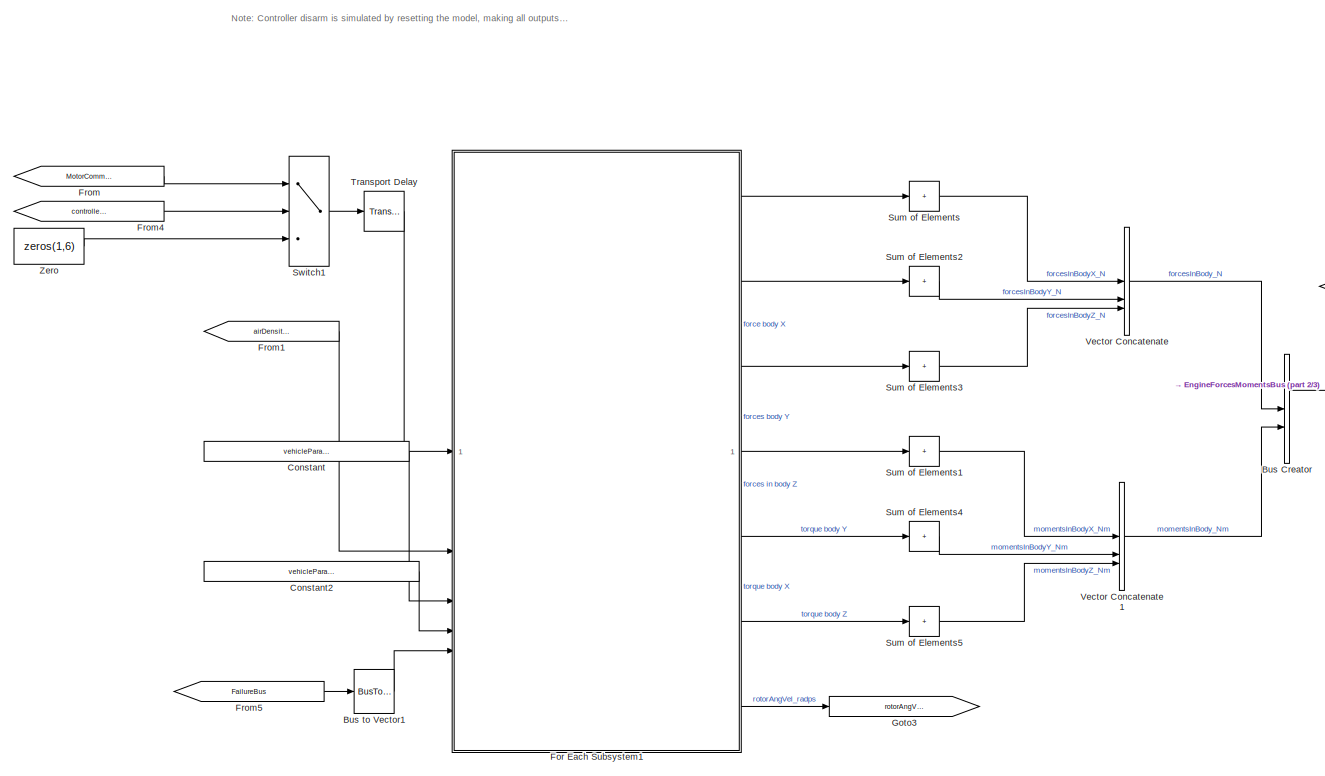
[diagram: root canvas - part 1/3, center side, full height]
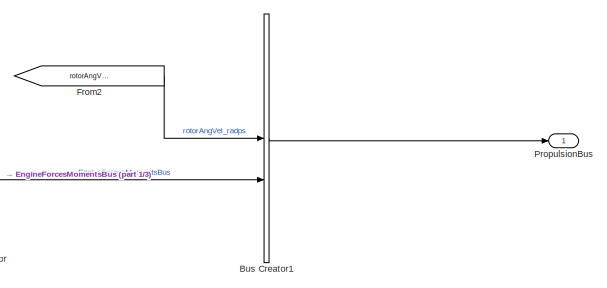
[diagram: root canvas - part 2/3, middle right region]
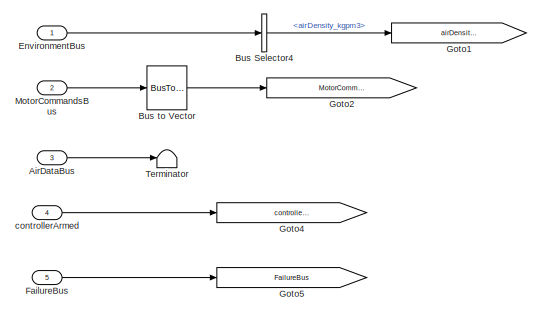
[diagram: root canvas - part 3/3, bottom left region]
MODEL slx_1cdb5f7f5667
KIND model
BLOCK [Inport] AirDataBus
  OutDataTypeStr = Bus: AirDataBus
  Port = 3
  SampleTime = stepSize_s
BLOCK [BusCreator] Bus Creator
  DisplayOption = bar
  InheritFromInputs = off
  Inputs = 2
  OutDataTypeStr = Bus: ComponentForcesMomentsBus
BLOCK [BusCreator] Bus Creator1
  DisplayOption = bar
  InheritFromInputs = on
  Inputs = 2
  NonVirtualBus = on
  OutDataTypeStr = Bus: PropulsionBus
BLOCK [BusSelector] Bus Selector4
  OutputSignals = AirEnvironment.airDensity_kgpm3
BLOCK [BusToVector] Bus to Vector
BLOCK [BusToVector] Bus to Vector1
BLOCK [Constant] Constant
  Value = vehicleParams.rotor.motorLocs
BLOCK [Constant] Constant2
  Value = vehicleParams.rotor.spinDirectionCW_isTrue
BLOCK [Inport] EnvironmentBus
  OutDataTypeStr = Bus: EnvironmentBus
BLOCK [Inport] FailureBus
  OutDataTypeStr = Bus: FailureBus
  Port = 5
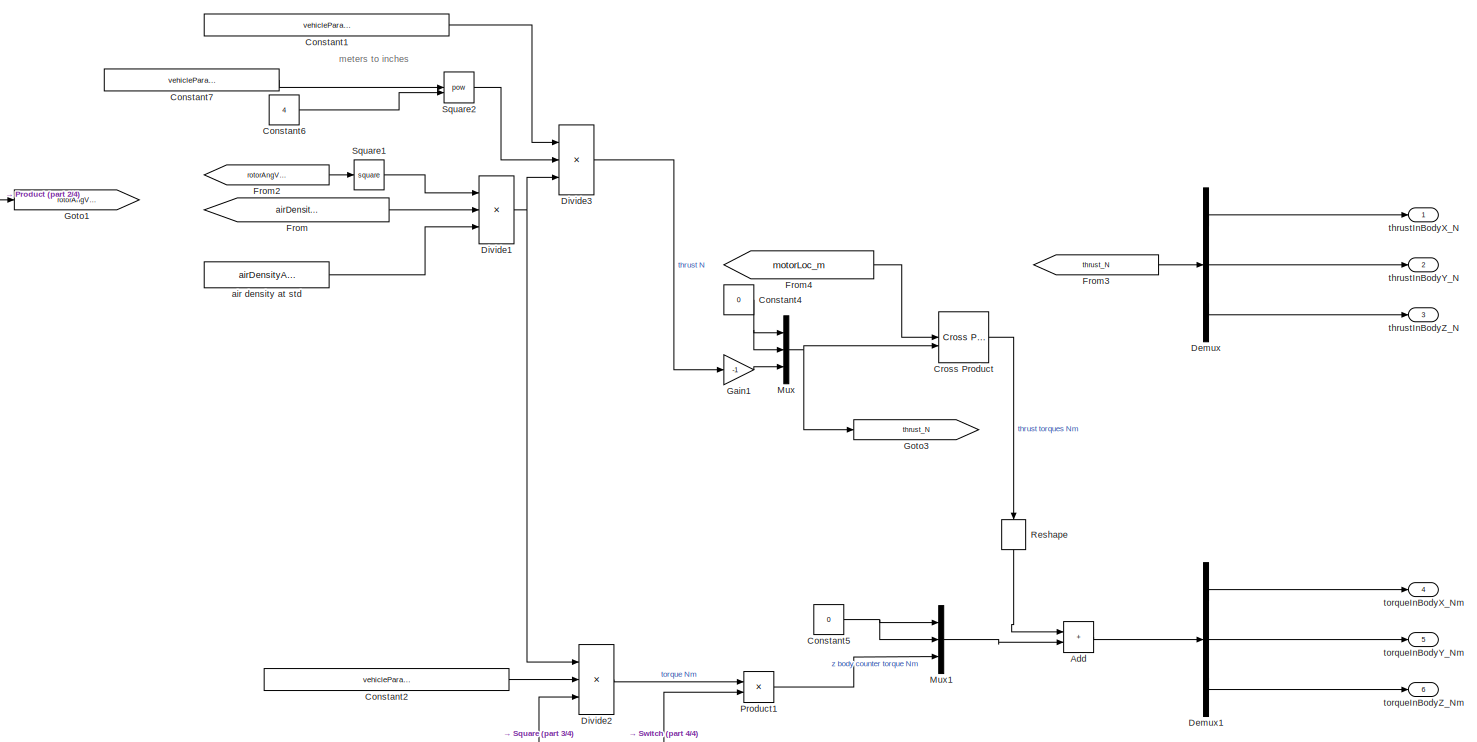
[diagram: For Each Subsystem1 - part 1/4, right side, full height]
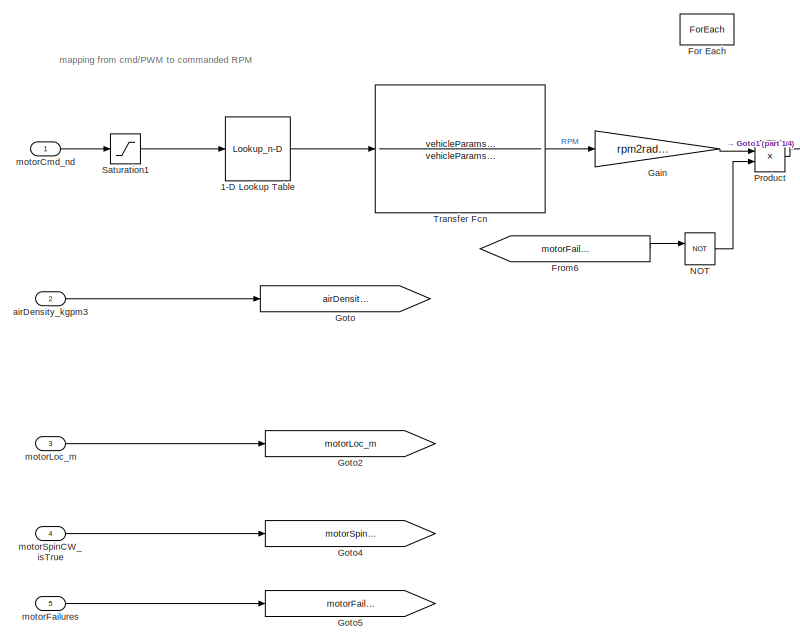
[diagram: For Each Subsystem1 - part 2/4, middle left region]
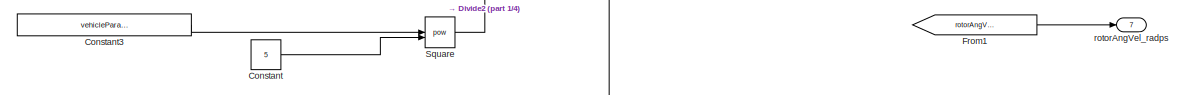
[diagram: For Each Subsystem1 - part 3/4, bottom center region]
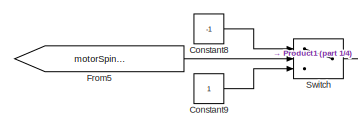
[diagram: For Each Subsystem1 - part 4/4, bottom center region]
BLOCK [SubSystem] For Each Subsystem1
  TreatAsAtomicUnit = on
BLOCK [Lookup_n-D] For Each Subsystem1/1-D Lookup Table
  BreakpointsForDimension1 = vehicleParams.rotor.cmdToRpmBkpts_nd
  InputPortMap = u0
  InternalRulePriority = Speed
  NumberOfTableDimensions = 1
  RndMeth = Simplest
  Table = vehicleParams.rotor.cmdToRpmData
BLOCK [Sum] For Each Subsystem1/Add
  IconShape = rectangular
BLOCK [Constant] For Each Subsystem1/Constant
  Value = 5
BLOCK [Constant] For Each Subsystem1/Constant1
  Value = vehicleParams.rotor.kct_nd
BLOCK [Constant] For Each Subsystem1/Constant2
  Value = vehicleParams.rotor.kcp_nd
BLOCK [Constant] For Each Subsystem1/Constant3
  Value = vehicleParams.rotor.diameter_m
BLOCK [Constant] For Each Subsystem1/Constant4
  Value = 0
BLOCK [Constant] For Each Subsystem1/Constant5
  Value = 0
BLOCK [Constant] For Each Subsystem1/Constant6
  Value = 4
BLOCK [Constant] For Each Subsystem1/Constant7
  Value = vehicleParams.rotor.diameter_m
BLOCK [Constant] For Each Subsystem1/Constant8
  Value = -1
BLOCK [Constant] For Each Subsystem1/Constant9
BLOCK [Reference] For Each Subsystem1/Cross Product  REF=matrix_library/Cross Product
  LibrarySourceBlock = simulink/Matrix\nOperations/Cross Product
  SourceBlock = matrix_library/Cross Product
  SourceType = CrossProduct
BLOCK [Demux] For Each Subsystem1/Demux
  Outputs = 3
BLOCK [Demux] For Each Subsystem1/Demux1
  Outputs = 3
BLOCK [Product] For Each Subsystem1/Divide1
  Inputs = **/
BLOCK [Product] For Each Subsystem1/Divide2
  Inputs = ***
BLOCK [Product] For Each Subsystem1/Divide3
  Inputs = ***
BLOCK [ForEach] For Each Subsystem1/For Each
  DisableCoverage = on
BLOCK [From] For Each Subsystem1/From
  GotoTag = airDensity_kgpm3
BLOCK [From] For Each Subsystem1/From1
  GotoTag = rotorAngVel_radps
BLOCK [From] For Each Subsystem1/From2
  GotoTag = rotorAngVel_radps
BLOCK [From] For Each Subsystem1/From3
  GotoTag = thrust_N
BLOCK [From] For Each Subsystem1/From4
  GotoTag = motorLoc_m
BLOCK [From] For Each Subsystem1/From5
  GotoTag = motorSpinCW_isTrue
BLOCK [From] For Each Subsystem1/From6
  GotoTag = motorFailures
BLOCK [Gain] For Each Subsystem1/Gain
  Gain = rpm2radps
BLOCK [Gain] For Each Subsystem1/Gain1
  Gain = -1
BLOCK [Goto] For Each Subsystem1/Goto
  GotoTag = airDensity_kgpm3
BLOCK [Goto] For Each Subsystem1/Goto1
  GotoTag = rotorAngVel_radps
BLOCK [Goto] For Each Subsystem1/Goto2
  GotoTag = motorLoc_m
BLOCK [Goto] For Each Subsystem1/Goto3
  GotoTag = thrust_N
BLOCK [Goto] For Each Subsystem1/Goto4
  GotoTag = motorSpinCW_isTrue
BLOCK [Goto] For Each Subsystem1/Goto5
  GotoTag = motorFailures
BLOCK [Mux] For Each Subsystem1/Mux
  DisplayOption = bar
  Inputs = 3
BLOCK [Mux] For Each Subsystem1/Mux1
  DisplayOption = bar
  Inputs = 3
BLOCK [Logic] For Each Subsystem1/NOT
  AllPortsSameDT = off
  IconShape = distinctive
  Operator = NOT
  OutDataTypeStr = boolean
BLOCK [Product] For Each Subsystem1/Product
BLOCK [Product] For Each Subsystem1/Product1
BLOCK [Reshape] For Each Subsystem1/Reshape
  NameLocation = left
BLOCK [Saturate] For Each Subsystem1/Saturation1
  LowerLimit = 0
  UpperLimit = 1
BLOCK [Math] For Each Subsystem1/Square
  Operator = pow
BLOCK [Math] For Each Subsystem1/Square1
  Operator = square
BLOCK [Math] For Each Subsystem1/Square2
  Operator = pow
BLOCK [Switch] For Each Subsystem1/Switch
  Criteria = u2 > Threshold
  InputSameDT = off
  SaturateOnIntegerOverflow = off
BLOCK [TransferFcn] For Each Subsystem1/Transfer Fcn
  Denominator = vehicleParams.actuator.tfDenominator
  Numerator = vehicleParams.actuator.tfNumerator
BLOCK [Constant] For Each Subsystem1/air density at std
  Value = airDensityAtStd_kgpm3
BLOCK [Inport] For Each Subsystem1/airDensity_kgpm3
  Port = 2
BLOCK [Inport] For Each Subsystem1/motorCmd_nd
  Partition = on
  PartitionDimension = 1
  PartitionOffset = 0
  PartitionWidth = 1
BLOCK [Inport] For Each Subsystem1/motorFailures
  Partition = on
  PartitionDimension = 1
  PartitionOffset = 0
  PartitionWidth = 1
  Port = 5
BLOCK [Inport] For Each Subsystem1/motorLoc_m
  Partition = on
  PartitionDimension = 1
  PartitionOffset = 0
  PartitionWidth = 1
  Port = 3
BLOCK [Inport] For Each Subsystem1/motorSpinCW_isTrue
  Partition = on
  PartitionDimension = 1
  PartitionOffset = 0
  PartitionWidth = 1
  Port = 4
BLOCK [Outport] For Each Subsystem1/rotorAngVel_radps
  ConcatenationDimension = 1
  Port = 7
BLOCK [Outport] For Each Subsystem1/thrustInBodyX_N
  ConcatenationDimension = 1
BLOCK [Outport] For Each Subsystem1/thrustInBodyY_N
  ConcatenationDimension = 1
  Port = 2
BLOCK [Outport] For Each Subsystem1/thrustInBodyZ_N
  ConcatenationDimension = 1
  Port = 3
BLOCK [Outport] For Each Subsystem1/torqueInBodyX_Nm
  ConcatenationDimension = 1
  Port = 4
BLOCK [Outport] For Each Subsystem1/torqueInBodyY_Nm
  ConcatenationDimension = 1
  Port = 5
BLOCK [Outport] For Each Subsystem1/torqueInBodyZ_Nm
  ConcatenationDimension = 1
  Port = 6
BLOCK [From] From
  GotoTag = MotorCommandsBus
BLOCK [From] From1
  GotoTag = airDensity_kgpm3
BLOCK [From] From2
  GotoTag = rotorAngVel_radps
BLOCK [From] From4
  GotoTag = controllerArmed
BLOCK [From] From5
  GotoTag = FailureBus
BLOCK [Goto] Goto1
  GotoTag = airDensity_kgpm3
BLOCK [Goto] Goto2
  GotoTag = MotorCommandsBus
BLOCK [Goto] Goto3
  GotoTag = rotorAngVel_radps
BLOCK [Goto] Goto4
  GotoTag = controllerArmed
BLOCK [Goto] Goto5
  GotoTag = FailureBus
BLOCK [Inport] MotorCommandsBus
  OutDataTypeStr = Bus: MotorCommandHexBus
  Port = 2
BLOCK [Outport] PropulsionBus
  BusOutputAsStruct = on
  OutDataTypeStr = Bus: PropulsionBus
BLOCK [Sum] Sum of Elements
  IconShape = rectangular
  Inputs = +
BLOCK [Sum] Sum of Elements1
  IconShape = rectangular
  Inputs = +
BLOCK [Sum] Sum of Elements2
  IconShape = rectangular
  Inputs = +
BLOCK [Sum] Sum of Elements3
  IconShape = rectangular
  Inputs = +
BLOCK [Sum] Sum of Elements4
  IconShape = rectangular
  Inputs = +
BLOCK [Sum] Sum of Elements5
  IconShape = rectangular
  Inputs = +
BLOCK [Switch] Switch1
  Criteria = u2 > Threshold
  InputSameDT = off
  SaturateOnIntegerOverflow = off
BLOCK [Terminator] Terminator
BLOCK [TransportDelay] Transport Delay
  DelayTime = actuatorDelay_s
BLOCK [Concatenate] Vector Concatenate
  NumInputs = 3
BLOCK [Concatenate] Vector Concatenate1
  NumInputs = 3
BLOCK [Constant] Zero
  OutDataTypeStr = Inherit: Inherit via back propagation
  Value = zeros(1,6)
BLOCK [Inport] controllerArmed
  Port = 4
ANNOTATION (root): Note: Controller disarm is simulated by resetting the model, making all outputs zero. This is not realistic, inertial forces should keep the rotor spinning until it slowly stops.
ANNOTATION For Each Subsystem1: mapping from cmd/PWM to commanded RPM
ANNOTATION For Each Subsystem1: meters to inches
LINE AirDataBus:1 -> Terminator:1
LINE Bus Creator1:1 -> PropulsionBus:1
LINE Bus Creator:1 -> Bus Creator1:2
LINE Bus Selector4:1 -> Goto1:1
LINE Bus to Vector1:1 -> For Each Subsystem1:5
LINE Bus to Vector:1 -> Goto2:1
LINE Constant2:1 -> For Each Subsystem1:4
LINE Constant:1 -> For Each Subsystem1:3
LINE EnvironmentBus:1 -> Bus Selector4:1
LINE FailureBus:1 -> Goto5:1
LINE For Each Subsystem1/1-D Lookup Table:1 -> For Each Subsystem1/Transfer Fcn:1
LINE For Each Subsystem1/Add:1 -> For Each Subsystem1/Demux1:1
LINE For Each Subsystem1/Constant1:1 -> For Each Subsystem1/Divide3:1
LINE For Each Subsystem1/Constant2:1 -> For Each Subsystem1/Divide2:2
LINE For Each Subsystem1/Constant3:1 -> For Each Subsystem1/Square:1
NET For Each Subsystem1/Constant4:1 -> For Each Subsystem1/Mux:1, For Each Subsystem1/Mux:2
NET For Each Subsystem1/Constant5:1 -> For Each Subsystem1/Mux1:1, For Each Subsystem1/Mux1:2
LINE For Each Subsystem1/Constant6:1 -> For Each Subsystem1/Square2:2
LINE For Each Subsystem1/Constant7:1 -> For Each Subsystem1/Square2:1
LINE For Each Subsystem1/Constant8:1 -> For Each Subsystem1/Switch:1
LINE For Each Subsystem1/Constant9:1 -> For Each Subsystem1/Switch:3
LINE For Each Subsystem1/Constant:1 -> For Each Subsystem1/Square:2
LINE For Each Subsystem1/Cross Product:1 -> For Each Subsystem1/Reshape:1
LINE For Each Subsystem1/Demux1:1 -> For Each Subsystem1/torqueInBodyX_Nm:1
LINE For Each Subsystem1/Demux1:2 -> For Each Subsystem1/torqueInBodyY_Nm:1
LINE For Each Subsystem1/Demux1:3 -> For Each Subsystem1/torqueInBodyZ_Nm:1
LINE For Each Subsystem1/Demux:1 -> For Each Subsystem1/thrustInBodyX_N:1
LINE For Each Subsystem1/Demux:2 -> For Each Subsystem1/thrustInBodyY_N:1
LINE For Each Subsystem1/Demux:3 -> For Each Subsystem1/thrustInBodyZ_N:1
NET For Each Subsystem1/Divide1:1 -> For Each Subsystem1/Divide2:1, For Each Subsystem1/Divide3:3
LINE For Each Subsystem1/Divide2:1 -> For Each Subsystem1/Product1:1
LINE For Each Subsystem1/Divide3:1 -> For Each Subsystem1/Gain1:1
LINE For Each Subsystem1/From1:1 -> For Each Subsystem1/rotorAngVel_radps:1
LINE For Each Subsystem1/From2:1 -> For Each Subsystem1/Square1:1
LINE For Each Subsystem1/From3:1 -> For Each Subsystem1/Demux:1
LINE For Each Subsystem1/From4:1 -> For Each Subsystem1/Cross Product:1
LINE For Each Subsystem1/From5:1 -> For Each Subsystem1/Switch:2
LINE For Each Subsystem1/From6:1 -> For Each Subsystem1/NOT:1
LINE For Each Subsystem1/From:1 -> For Each Subsystem1/Divide1:2
LINE For Each Subsystem1/Gain1:1 -> For Each Subsystem1/Mux:3
LINE For Each Subsystem1/Gain:1 -> For Each Subsystem1/Product:1
LINE For Each Subsystem1/Mux1:1 -> For Each Subsystem1/Add:2
NET For Each Subsystem1/Mux:1 -> For Each Subsystem1/Cross Product:2, For Each Subsystem1/Goto3:1
LINE For Each Subsystem1/NOT:1 -> For Each Subsystem1/Product:2
LINE For Each Subsystem1/Product1:1 -> For Each Subsystem1/Mux1:3
LINE For Each Subsystem1/Product:1 -> For Each Subsystem1/Goto1:1
LINE For Each Subsystem1/Reshape:1 -> For Each Subsystem1/Add:1
LINE For Each Subsystem1/Saturation1:1 -> For Each Subsystem1/1-D Lookup Table:1
LINE For Each Subsystem1/Square1:1 -> For Each Subsystem1/Divide1:1
LINE For Each Subsystem1/Square2:1 -> For Each Subsystem1/Divide3:2
LINE For Each Subsystem1/Square:1 -> For Each Subsystem1/Divide2:3
LINE For Each Subsystem1/Switch:1 -> For Each Subsystem1/Product1:2
LINE For Each Subsystem1/Transfer Fcn:1 -> For Each Subsystem1/Gain:1
LINE For Each Subsystem1/air density at std:1 -> For Each Subsystem1/Divide1:3
LINE For Each Subsystem1/airDensity_kgpm3:1 -> For Each Subsystem1/Goto:1
LINE For Each Subsystem1/motorCmd_nd:1 -> For Each Subsystem1/Saturation1:1
LINE For Each Subsystem1/motorFailures:1 -> For Each Subsystem1/Goto5:1
LINE For Each Subsystem1/motorLoc_m:1 -> For Each Subsystem1/Goto2:1
LINE For Each Subsystem1/motorSpinCW_isTrue:1 -> For Each Subsystem1/Goto4:1
LINE For Each Subsystem1:1 -> Sum of Elements:1
LINE For Each Subsystem1:2 -> Sum of Elements2:1
LINE For Each Subsystem1:3 -> Sum of Elements3:1
LINE For Each Subsystem1:4 -> Sum of Elements1:1
LINE For Each Subsystem1:5 -> Sum of Elements4:1
LINE For Each Subsystem1:6 -> Sum of Elements5:1
LINE For Each Subsystem1:7 -> Goto3:1
LINE From1:1 -> For Each Subsystem1:2
LINE From2:1 -> Bus Creator1:1
LINE From4:1 -> Switch1:2
LINE From5:1 -> Bus to Vector1:1
LINE From:1 -> Switch1:1
LINE MotorCommandsBus:1 -> Bus to Vector:1
LINE Sum of Elements1:1 -> Vector Concatenate1:1
LINE Sum of Elements2:1 -> Vector Concatenate:2
LINE Sum of Elements3:1 -> Vector Concatenate:3
LINE Sum of Elements4:1 -> Vector Concatenate1:2
LINE Sum of Elements5:1 -> Vector Concatenate1:3
LINE Sum of Elements:1 -> Vector Concatenate:1
LINE Switch1:1 -> Transport Delay:1
LINE Transport Delay:1 -> For Each Subsystem1:1
LINE Vector Concatenate1:1 -> Bus Creator:2
LINE Vector Concatenate:1 -> Bus Creator:1
LINE Zero:1 -> Switch1:3
LINE controllerArmed:1 -> Goto4:1
note: NET lines group one-source signal fan-out (src -> all destinations, sorted); 1:1 wires keep LINE
